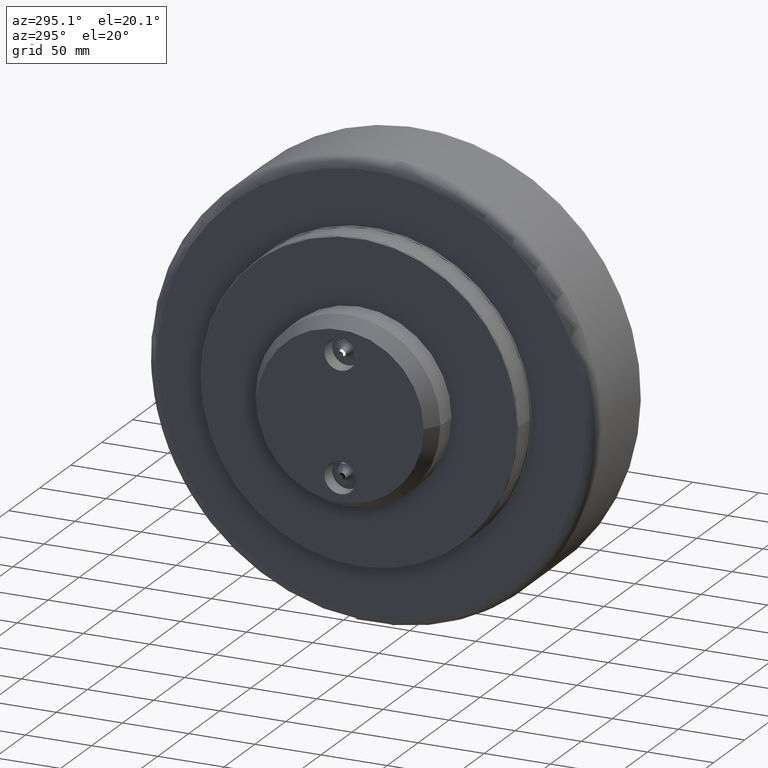
[diagram: clean part render]
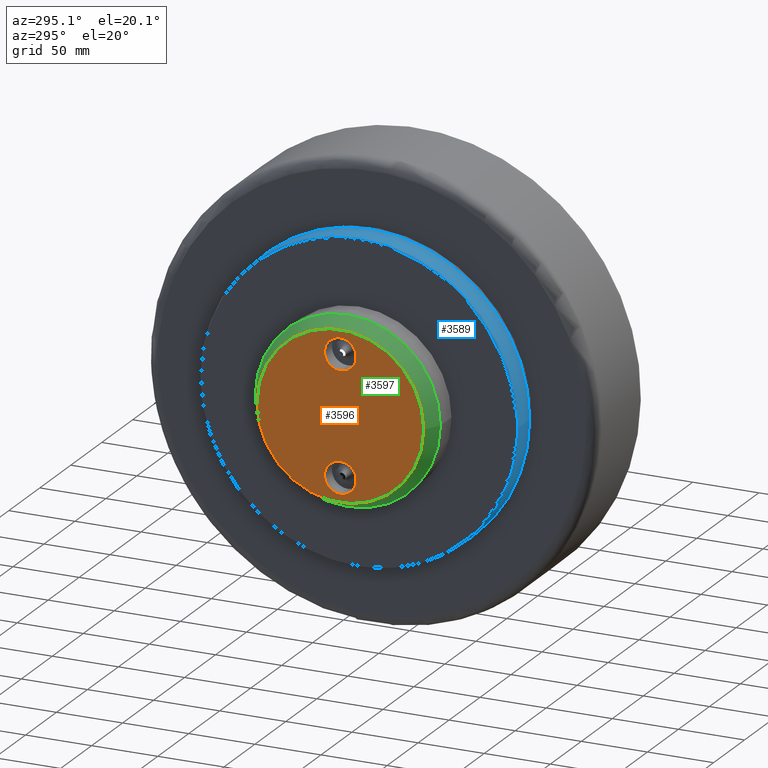
[diagram: same view with three faces highlighted in distinct colors, each labeled with its STEP entity id]
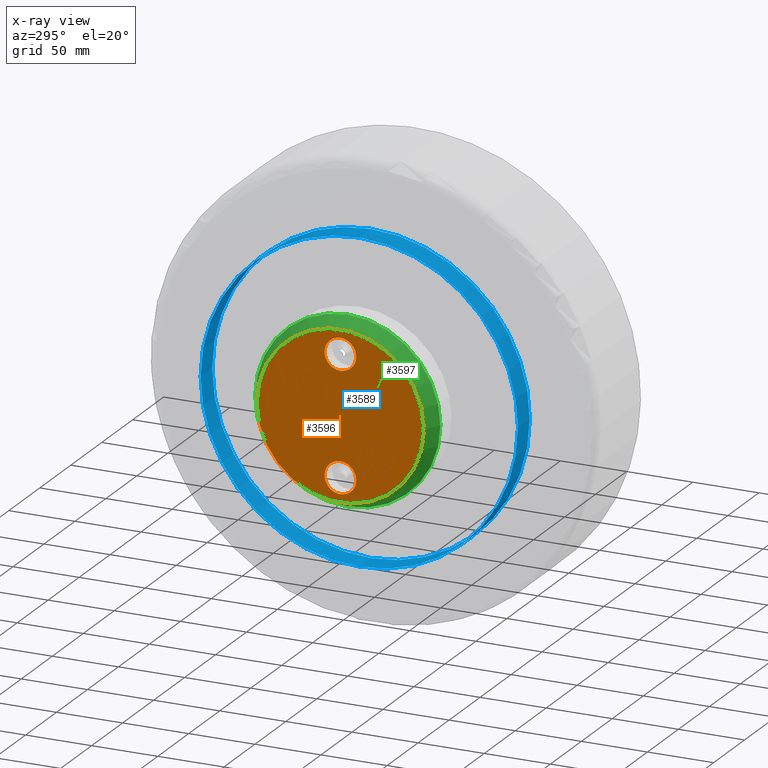
[diagram: x-ray of the same camera — body ghosted, the three highlighted faces saturated]
A machine part, auxiliary view with three faces highlighted in distinct colors.
The next image is the same camera in x-ray (body ghosted, the three faces saturated) — at least one of them is partly hidden behind the body in this view.
Their STEP definitions:

[orange] entity #3596 — the highlighted planar face has unit normal (-1, -0, 0).
#95=FACE_BOUND('',#759,.T.);
#96=FACE_BOUND('',#760,.T.);
#287=CIRCLE('',#3992,12.);
#288=CIRCLE('',#3993,12.);
#291=CIRCLE('',#3998,12.);
#292=CIRCLE('',#3999,12.);
#295=CIRCLE('',#4004,63.0717967697245);
#296=CIRCLE('',#4005,63.0717967697245);
#529=FACE_OUTER_BOUND('',#758,.T.);
#758=EDGE_LOOP('',(#2886,#2887));
#759=EDGE_LOOP('',(#2888,#2889));
#760=EDGE_LOOP('',(#2890,#2891));
#1535=VERTEX_POINT('',#6036);
#1536=VERTEX_POINT('',#6037);
#1539=VERTEX_POINT('',#6047);
#1540=VERTEX_POINT('',#6048);
#1543=VERTEX_POINT('',#6058);
#1544=VERTEX_POINT('',#6059);
#2002=EDGE_CURVE('',#1535,#1536,#287,.T.);
#2003=EDGE_CURVE('',#1536,#1535,#288,.T.);
#2007=EDGE_CURVE('',#1539,#1540,#291,.T.);
#2008=EDGE_CURVE('',#1540,#1539,#292,.T.);
#2012=EDGE_CURVE('',#1543,#1544,#295,.T.);
#2013=EDGE_CURVE('',#1544,#1543,#296,.T.);
#2886=ORIENTED_EDGE('',*,*,#2012,.F.);
#2887=ORIENTED_EDGE('',*,*,#2013,.F.);
#2888=ORIENTED_EDGE('',*,*,#2002,.T.);
#2889=ORIENTED_EDGE('',*,*,#2003,.T.);
#2890=ORIENTED_EDGE('',*,*,#2007,.T.);
#2891=ORIENTED_EDGE('',*,*,#2008,.T.);
#3231=PLANE('',#4003);
#3596=ADVANCED_FACE('',(#529,#95,#96),#3231,.T.);
#3992=AXIS2_PLACEMENT_3D('',#6038,#4847,#4848);
#3993=AXIS2_PLACEMENT_3D('',#6039,#4849,#4850);
#3998=AXIS2_PLACEMENT_3D('',#6049,#4860,#4861);
#3999=AXIS2_PLACEMENT_3D('',#6050,#4862,#4863);
#4003=AXIS2_PLACEMENT_3D('',#6057,#4871,#4872);
#4004=AXIS2_PLACEMENT_3D('',#6060,#4873,#4874);
#4005=AXIS2_PLACEMENT_3D('',#6061,#4875,#4876);
#4847=DIRECTION('center_axis',(1.,3.23627764263203E-16,0.));
#4848=DIRECTION('ref_axis',(0.,0.,1.));
#4849=DIRECTION('center_axis',(1.,3.23627764263203E-16,0.));
#4850=DIRECTION('ref_axis',(0.,0.,1.));
#4860=DIRECTION('center_axis',(1.,3.23627764263203E-16,0.));
#4861=DIRECTION('ref_axis',(0.,0.,1.));
#4862=DIRECTION('center_axis',(1.,3.23627764263203E-16,0.));
#4863=DIRECTION('ref_axis',(0.,0.,1.));
#4871=DIRECTION('center_axis',(-1.,-3.23627764263203E-16,0.));
#4872=DIRECTION('ref_axis',(0.,0.,1.));
#4873=DIRECTION('center_axis',(1.,3.23627764263203E-16,0.));
#4874=DIRECTION('ref_axis',(0.,1.,0.));
#4875=DIRECTION('center_axis',(1.,3.23627764263203E-16,0.));
#4876=DIRECTION('ref_axis',(0.,1.,0.));
#6036=CARTESIAN_POINT('',(-121.749475903948,-81.1601457435733,-62.6501232824478));
#6037=CARTESIAN_POINT('',(-121.749475903948,-81.1601457435733,-86.6501232824478));
#6038=CARTESIAN_POINT('Origin',(-121.749475903948,-81.1601457435733,-74.6501232824478));
#6039=CARTESIAN_POINT('Origin',(-121.749475903948,-81.1601457435733,-74.6501232824478));
#6047=CARTESIAN_POINT('',(-121.749475903948,-81.1601457435733,27.3498767175522));
#6048=CARTESIAN_POINT('',(-121.749475903948,-81.1601457435733,3.34987671755217));
#6049=CARTESIAN_POINT('Origin',(-121.749475903948,-81.1601457435733,15.3498767175522));
#6050=CARTESIAN_POINT('Origin',(-121.749475903948,-81.1601457435733,15.3498767175522));
#6057=CARTESIAN_POINT('Origin',(-121.749475903948,-49.624247358711,-29.6501232824478));
#6058=CARTESIAN_POINT('',(-121.749475903948,-18.0883489738488,-29.6501232824478));
#6059=CARTESIAN_POINT('',(-121.749475903948,-144.231942513298,-29.6501232824478));
#6060=CARTESIAN_POINT('Origin',(-121.749475903948,-81.1601457435733,-29.6501232824478));
#6061=CARTESIAN_POINT('Origin',(-121.749475903948,-81.1601457435733,-29.6501232824478));

[blue] entity #3589 — the highlighted cylindrical surface (bore or boss wall) has radius 120 mm, axis along (1, 0, 0).
#39=CYLINDRICAL_SURFACE('',#3984,120.);
#280=CIRCLE('',#3981,120.);
#281=CIRCLE('',#3982,120.);
#283=CIRCLE('',#3985,120.);
#284=CIRCLE('',#3986,120.);
#522=FACE_OUTER_BOUND('',#748,.T.);
#748=EDGE_LOOP('',(#2844,#2845,#2846,#2847,#2848,#2849));
#918=LINE('',#6027,#1095);
#1095=VECTOR('',#4835,120.);
#1528=VERTEX_POINT('',#6015);
#1529=VERTEX_POINT('',#6016);
#1531=VERTEX_POINT('',#6023);
#1532=VERTEX_POINT('',#6024);
#1992=EDGE_CURVE('',#1528,#1529,#280,.T.);
#1993=EDGE_CURVE('',#1529,#1528,#281,.T.);
#1996=EDGE_CURVE('',#1531,#1532,#283,.T.);
#1997=EDGE_CURVE('',#1532,#1531,#284,.T.);
#1998=EDGE_CURVE('',#1532,#1529,#918,.T.);
#2844=ORIENTED_EDGE('',*,*,#1996,.F.);
#2845=ORIENTED_EDGE('',*,*,#1997,.F.);
#2846=ORIENTED_EDGE('',*,*,#1998,.T.);
#2847=ORIENTED_EDGE('',*,*,#1992,.F.);
#2848=ORIENTED_EDGE('',*,*,#1993,.F.);
#2849=ORIENTED_EDGE('',*,*,#1998,.F.);
#3589=ADVANCED_FACE('',(#522),#39,.T.);
#3981=AXIS2_PLACEMENT_3D('',#6017,#4822,#4823);
#3982=AXIS2_PLACEMENT_3D('',#6018,#4824,#4825);
#3984=AXIS2_PLACEMENT_3D('',#6022,#4829,#4830);
#3985=AXIS2_PLACEMENT_3D('',#6025,#4831,#4832);
#3986=AXIS2_PLACEMENT_3D('',#6026,#4833,#4834);
#4822=DIRECTION('center_axis',(-1.,-3.23627764263203E-16,0.));
#4823=DIRECTION('ref_axis',(0.,-1.,0.));
#4824=DIRECTION('center_axis',(-1.,-3.23627764263203E-16,0.));
#4825=DIRECTION('ref_axis',(0.,-1.,0.));
#4829=DIRECTION('center_axis',(1.,3.23627764263203E-16,0.));
#4830=DIRECTION('ref_axis',(0.,1.,0.));
#4831=DIRECTION('center_axis',(1.,3.23627764263203E-16,0.));
#4832=DIRECTION('ref_axis',(0.,-1.,0.));
#4833=DIRECTION('center_axis',(1.,3.23627764263203E-16,0.));
#4834=DIRECTION('ref_axis',(0.,-1.,0.));
#4835=DIRECTION('',(-1.,-3.23627764263204E-16,0.));
#6015=CARTESIAN_POINT('',(-91.2494759039477,38.8398542564267,-29.6501232824478));
#6016=CARTESIAN_POINT('',(-91.2494759039478,-201.160145743573,-29.6501232824478));
#6017=CARTESIAN_POINT('Origin',(-91.2494759039477,-81.1601457435733,-29.6501232824478));
#6018=CARTESIAN_POINT('Origin',(-91.2494759039477,-81.1601457435733,-29.6501232824478));
#6022=CARTESIAN_POINT('Origin',(-81.7494759039477,-81.1601457435733,-29.6501232824478));
#6023=CARTESIAN_POINT('',(-72.2494759039477,38.8398542564267,-29.6501232824478));
#6024=CARTESIAN_POINT('',(-72.2494759039477,-201.160145743573,-29.6501232824478));
#6025=CARTESIAN_POINT('Origin',(-72.2494759039477,-81.1601457435732,-29.6501232824478));
#6026=CARTESIAN_POINT('Origin',(-72.2494759039477,-81.1601457435732,-29.6501232824478));
#6027=CARTESIAN_POINT('',(-81.7494759039477,-201.160145743573,-29.6501232824478));

[green] entity #3597 — the highlighted conical surface has half-angle 30 deg.
#295=CIRCLE('',#4004,63.0717967697245);
#296=CIRCLE('',#4005,63.0717967697245);
#297=CIRCLE('',#4007,70.);
#298=CIRCLE('',#4008,70.);
#374=CONICAL_SURFACE('',#4006,66.5358983848623,0.523598775598298);
#530=FACE_OUTER_BOUND('',#761,.T.);
#761=EDGE_LOOP('',(#2892,#2893,#2894,#2895,#2896,#2897));
#922=LINE('',#6067,#1099);
#1099=VECTOR('',#4883,66.5358983848622);
#1543=VERTEX_POINT('',#6058);
#1544=VERTEX_POINT('',#6059);
#1545=VERTEX_POINT('',#6063);
#1546=VERTEX_POINT('',#6064);
#2012=EDGE_CURVE('',#1543,#1544,#295,.T.);
#2013=EDGE_CURVE('',#1544,#1543,#296,.T.);
#2014=EDGE_CURVE('',#1545,#1546,#297,.T.);
#2015=EDGE_CURVE('',#1546,#1545,#298,.T.);
#2016=EDGE_CURVE('',#1546,#1544,#922,.T.);
#2892=ORIENTED_EDGE('',*,*,#2014,.F.);
#2893=ORIENTED_EDGE('',*,*,#2015,.F.);
#2894=ORIENTED_EDGE('',*,*,#2016,.T.);
#2895=ORIENTED_EDGE('',*,*,#2013,.T.);
#2896=ORIENTED_EDGE('',*,*,#2012,.T.);
#2897=ORIENTED_EDGE('',*,*,#2016,.F.);
#3597=ADVANCED_FACE('',(#530),#374,.T.);
#4004=AXIS2_PLACEMENT_3D('',#6060,#4873,#4874);
#4005=AXIS2_PLACEMENT_3D('',#6061,#4875,#4876);
#4006=AXIS2_PLACEMENT_3D('',#6062,#4877,#4878);
#4007=AXIS2_PLACEMENT_3D('',#6065,#4879,#4880);
#4008=AXIS2_PLACEMENT_3D('',#6066,#4881,#4882);
#4873=DIRECTION('center_axis',(1.,3.23627764263203E-16,0.));
#4874=DIRECTION('ref_axis',(0.,1.,0.));
#4875=DIRECTION('center_axis',(1.,3.23627764263203E-16,0.));
#4876=DIRECTION('ref_axis',(0.,1.,0.));
#4877=DIRECTION('center_axis',(1.,3.23627764263203E-16,0.));
#4878=DIRECTION('ref_axis',(0.,1.,0.));
#4879=DIRECTION('center_axis',(1.,3.23627764263203E-16,0.));
#4880=DIRECTION('ref_axis',(0.,1.,0.));
#4881=DIRECTION('center_axis',(1.,3.23627764263203E-16,0.));
#4882=DIRECTION('ref_axis',(0.,1.,0.));
#4883=DIRECTION('',(-0.866025403784439,0.499999999999999,6.12323399573676E-17));
#6058=CARTESIAN_POINT('',(-121.749475903948,-18.0883489738488,-29.6501232824478));
#6059=CARTESIAN_POINT('',(-121.749475903948,-144.231942513298,-29.6501232824478));
#6060=CARTESIAN_POINT('Origin',(-121.749475903948,-81.1601457435733,-29.6501232824478));
#6061=CARTESIAN_POINT('Origin',(-121.749475903948,-81.1601457435733,-29.6501232824478));
#6062=CARTESIAN_POINT('Origin',(-115.749475903948,-81.1601457435733,-29.6501232824478));
#6063=CARTESIAN_POINT('',(-109.749475903948,-11.1601457435733,-29.6501232824478));
#6064=CARTESIAN_POINT('',(-109.749475903948,-151.160145743573,-29.6501232824478));
#6065=CARTESIAN_POINT('Origin',(-109.749475903948,-81.1601457435733,-29.6501232824478));
#6066=CARTESIAN_POINT('Origin',(-109.749475903948,-81.1601457435733,-29.6501232824478));
#6067=CARTESIAN_POINT('',(-115.749475903948,-147.696044128436,-29.6501232824478));